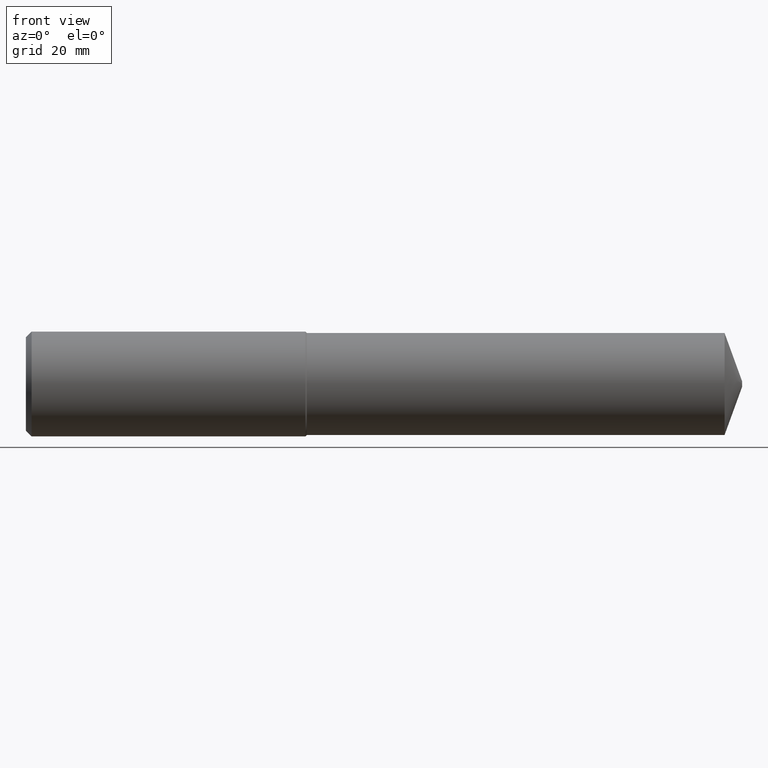
[diagram: clean part render]
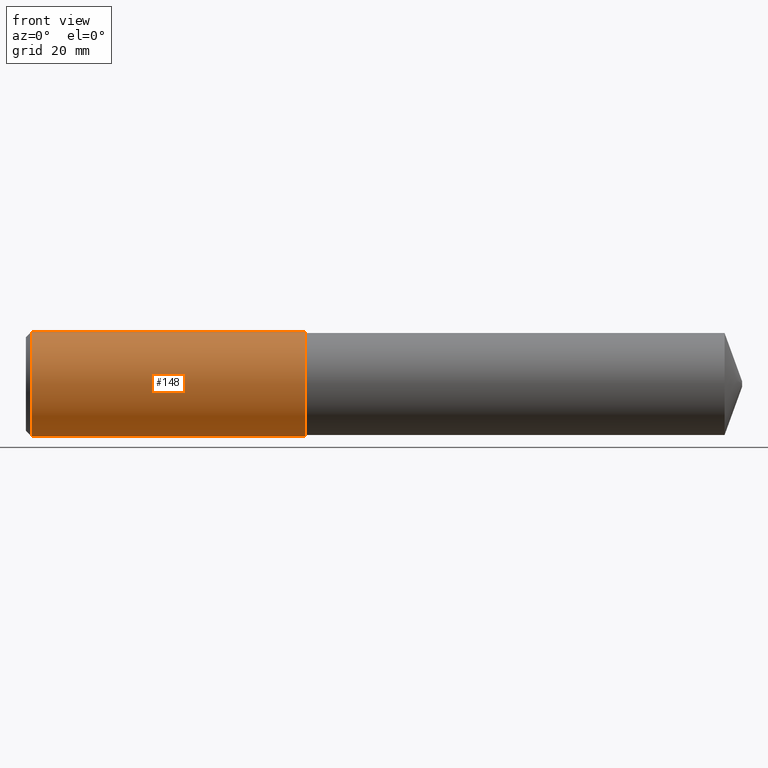
[diagram: same view with one face highlighted and labeled with its STEP entity id]
A machine part, front view. The second image highlights one B-rep face of the part: STEP entity #148.
In plain terms, the highlighted cylindrical surface (partial cylindrical patch) has radius 9 mm, axis along (1, -0, -0).
Its self-contained STEP definition (entity closure, byte-faithful):
#2 = CARTESIAN_POINT ( 'NONE',  ( 1.889763779527559251, 4.339299682018183145E-17, -0.3543307086614175261 ) ) ;
#6 = EDGE_CURVE ( 'NONE', #296, #210, #217, .T. ) ;
#60 = VECTOR ( 'NONE', #222, 39.37007874015748143 ) ;
#66 = DIRECTION ( 'NONE',  ( 0.000000000000000000, 0.000000000000000000, -1.000000000000000000 ) ) ;
#68 = ORIENTED_EDGE ( 'NONE', *, *, #133, .T. ) ;
#76 = CYLINDRICAL_SURFACE ( 'NONE', #105, 0.3543307086614173596 ) ;
#82 = CARTESIAN_POINT ( 'NONE',  ( -0.03808593750000075634, 0.000000000000000000, 0.000000000000000000 ) ) ;
#94 = VERTEX_POINT ( 'NONE', #2 ) ;
#101 = ORIENTED_EDGE ( 'NONE', *, *, #207, .F. ) ;
#103 = DIRECTION ( 'NONE',  ( 1.000000000000000000, -0.000000000000000000, -0.000000000000000000 ) ) ;
#105 = AXIS2_PLACEMENT_3D ( 'NONE', #82, #347, #257 ) ;
#115 = LINE ( 'NONE', #323, #202 ) ;
#118 = ORIENTED_EDGE ( 'NONE', *, *, #363, .F. ) ;
#126 = VERTEX_POINT ( 'NONE', #319 ) ;
#133 = EDGE_CURVE ( 'NONE', #210, #94, #317, .T. ) ;
#148 = ADVANCED_FACE ( 'NONE', ( #255 ), #76, .T. ) ;
#164 = DIRECTION ( 'NONE',  ( 0.000000000000000000, 0.000000000000000000, -1.000000000000000000 ) ) ;
#167 = CARTESIAN_POINT ( 'NONE',  ( 1.889763779527559251, 0.000000000000000000, 0.000000000000000000 ) ) ;
#202 = VECTOR ( 'NONE', #293, 39.37007874015748143 ) ;
#207 = EDGE_CURVE ( 'NONE', #126, #94, #238, .T. ) ;
#210 = VERTEX_POINT ( 'NONE', #219 ) ;
#216 = CARTESIAN_POINT ( 'NONE',  ( 0.03937007874015747977, 0.000000000000000000, 0.000000000000000000 ) ) ;
#217 = CIRCLE ( 'NONE', #334, 0.3543307086614172485 ) ;
#219 = CARTESIAN_POINT ( 'NONE',  ( 0.03937007874015747977, 0.000000000000000000, -0.3543307086614172485 ) ) ;
#222 = DIRECTION ( 'NONE',  ( 1.000000000000000000, -0.000000000000000000, -0.000000000000000000 ) ) ;
#226 = ORIENTED_EDGE ( 'NONE', *, *, #6, .T. ) ;
#238 = CIRCLE ( 'NONE', #357, 0.3543307086614175261 ) ;
#255 = FACE_OUTER_BOUND ( 'NONE', #342, .T. ) ;
#257 = DIRECTION ( 'NONE',  ( 0.000000000000000000, 0.000000000000000000, -1.000000000000000000 ) ) ;
#286 = CARTESIAN_POINT ( 'NONE',  ( -0.03808593750000075634, 0.000000000000000000, -0.3543307086614173596 ) ) ;
#293 = DIRECTION ( 'NONE',  ( 1.000000000000000000, -0.000000000000000000, -0.000000000000000000 ) ) ;
#296 = VERTEX_POINT ( 'NONE', #361 ) ;
#317 = LINE ( 'NONE', #286, #60 ) ;
#319 = CARTESIAN_POINT ( 'NONE',  ( 1.889763779527559251, 0.000000000000000000, 0.3543307086614175261 ) ) ;
#323 = CARTESIAN_POINT ( 'NONE',  ( -0.03808593750000075634, 4.339299682018181296E-17, 0.3543307086614173596 ) ) ;
#334 = AXIS2_PLACEMENT_3D ( 'NONE', #216, #366, #66 ) ;
#342 = EDGE_LOOP ( 'NONE', ( #118, #226, #68, #101 ) ) ;
#347 = DIRECTION ( 'NONE',  ( 1.000000000000000000, -0.000000000000000000, -0.000000000000000000 ) ) ;
#357 = AXIS2_PLACEMENT_3D ( 'NONE', #167, #103, #164 ) ;
#361 = CARTESIAN_POINT ( 'NONE',  ( 0.03937007874015747977, 4.339299682018180063E-17, 0.3543307086614172485 ) ) ;
#363 = EDGE_CURVE ( 'NONE', #296, #126, #115, .T. ) ;
#366 = DIRECTION ( 'NONE',  ( 1.000000000000000000, -0.000000000000000000, -0.000000000000000000 ) ) ;